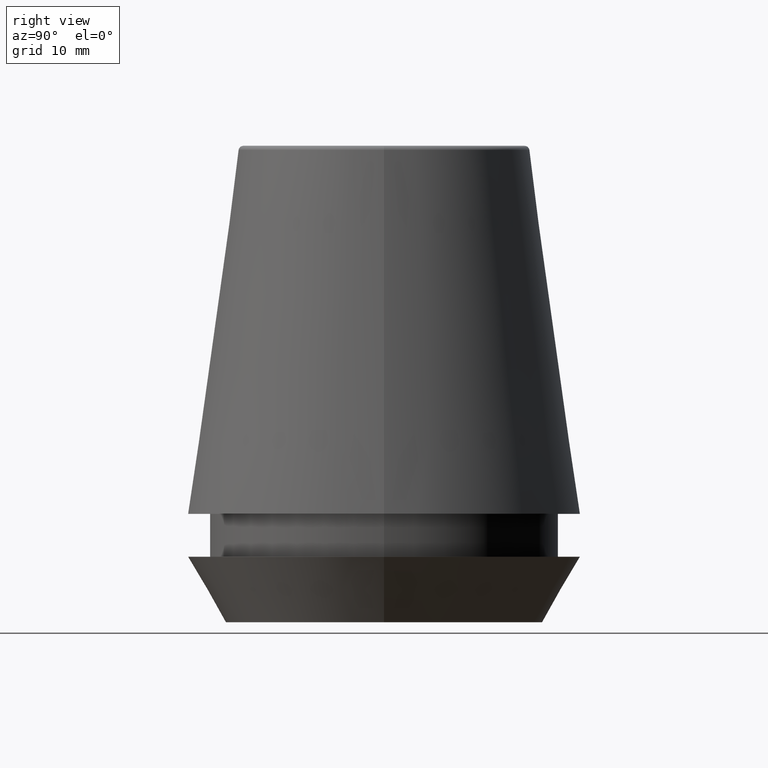
[diagram: clean part render]
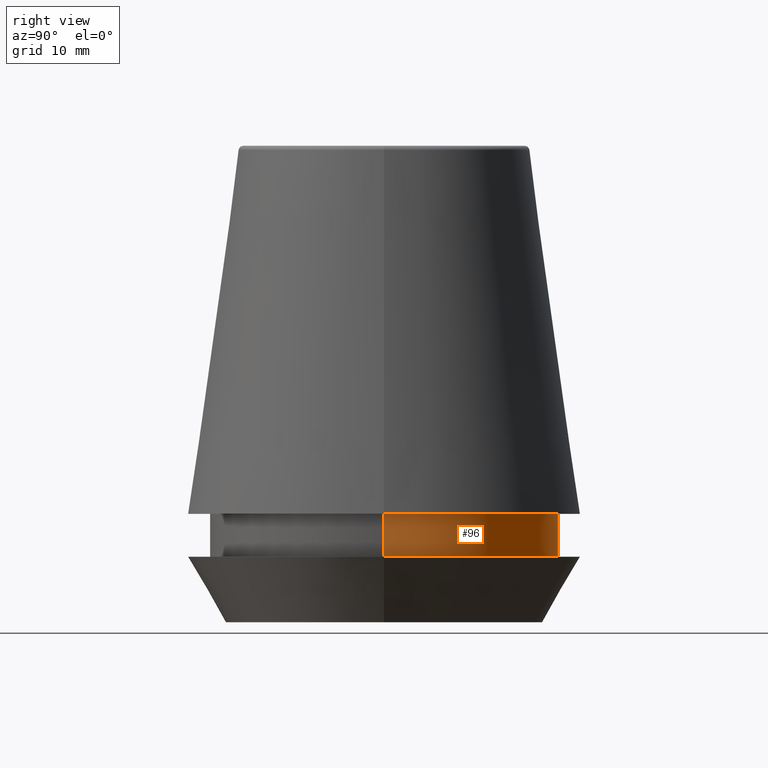
[diagram: same view with one face highlighted and labeled with its STEP entity id]
A machine part, right view. The second image highlights one B-rep face of the part: STEP entity #96.
In plain terms, the highlighted cylindrical surface (partial cylindrical patch) has radius 14.6 mm, axis along (-0, -0, 1).
Its self-contained STEP definition (entity closure, byte-faithful):
#9 = CARTESIAN_POINT ( 'NONE',  ( 0.0000000000000000000, 0.0000000000000000000, 5.500000000000005300 ) ) ;
#25 = DIRECTION ( 'NONE',  ( 1.000000000000000000, 0.0000000000000000000, 0.0000000000000000000 ) ) ;
#32 = DIRECTION ( 'NONE',  ( -0.0000000000000000000, -0.0000000000000000000, 1.000000000000000000 ) ) ;
#40 = DIRECTION ( 'NONE',  ( -0.0000000000000000000, -0.0000000000000000000, 1.000000000000000000 ) ) ;
#46 = CARTESIAN_POINT ( 'NONE',  ( 14.60000000000000000, 0.0000000000000000000, 5.500000000000005300 ) ) ;
#50 = CIRCLE ( 'NONE', #133, 14.60000000000000000 ) ;
#62 = FACE_OUTER_BOUND ( 'NONE', #192, .T. ) ;
#64 = CARTESIAN_POINT ( 'NONE',  ( -14.60000000000000000, 1.787984326755135800E-015, 101.8074564848000400 ) ) ;
#74 = ORIENTED_EDGE ( 'NONE', *, *, #249, .F. ) ;
#96 = ADVANCED_FACE ( 'NONE', ( #62 ), #311, .T. ) ;
#97 = CARTESIAN_POINT ( 'NONE',  ( -14.60000000000000000, 1.787984326755135800E-015, 5.500000000000005300 ) ) ;
#102 = VERTEX_POINT ( 'NONE', #241 ) ;
#105 = ORIENTED_EDGE ( 'NONE', *, *, #221, .F. ) ;
#113 = VECTOR ( 'NONE', #288, 1000.000000000000000 ) ;
#133 = AXIS2_PLACEMENT_3D ( 'NONE', #9, #40, #227 ) ;
#145 = ORIENTED_EDGE ( 'NONE', *, *, #239, .T. ) ;
#149 = CARTESIAN_POINT ( 'NONE',  ( 0.0000000000000000000, 0.0000000000000000000, 101.8074564848000400 ) ) ;
#154 = EDGE_CURVE ( 'NONE', #303, #102, #267, .T. ) ;
#178 = VECTOR ( 'NONE', #32, 1000.000000000000000 ) ;
#185 = CARTESIAN_POINT ( 'NONE',  ( 14.60000000000000000, 0.0000000000000000000, 101.8074564848000400 ) ) ;
#192 = EDGE_LOOP ( 'NONE', ( #145, #307, #105, #74 ) ) ;
#201 = AXIS2_PLACEMENT_3D ( 'NONE', #149, #269, #217 ) ;
#217 = DIRECTION ( 'NONE',  ( 1.000000000000000000, 0.0000000000000000000, 0.0000000000000000000 ) ) ;
#221 = EDGE_CURVE ( 'NONE', #286, #102, #378, .T. ) ;
#227 = DIRECTION ( 'NONE',  ( 1.000000000000000000, 0.0000000000000000000, 0.0000000000000000000 ) ) ;
#239 = EDGE_CURVE ( 'NONE', #375, #303, #50, .T. ) ;
#241 = CARTESIAN_POINT ( 'NONE',  ( -14.60000000000000000, 1.787984326755135800E-015, 9.099999999999997900 ) ) ;
#242 = CARTESIAN_POINT ( 'NONE',  ( 14.60000000000000000, 0.0000000000000000000, 9.099999999999997900 ) ) ;
#249 = EDGE_CURVE ( 'NONE', #375, #286, #354, .T. ) ;
#267 = LINE ( 'NONE', #64, #178 ) ;
#269 = DIRECTION ( 'NONE',  ( -0.0000000000000000000, -0.0000000000000000000, 1.000000000000000000 ) ) ;
#286 = VERTEX_POINT ( 'NONE', #242 ) ;
#288 = DIRECTION ( 'NONE',  ( -0.0000000000000000000, -0.0000000000000000000, 1.000000000000000000 ) ) ;
#291 = DIRECTION ( 'NONE',  ( -0.0000000000000000000, -0.0000000000000000000, 1.000000000000000000 ) ) ;
#303 = VERTEX_POINT ( 'NONE', #97 ) ;
#307 = ORIENTED_EDGE ( 'NONE', *, *, #154, .T. ) ;
#311 = CYLINDRICAL_SURFACE ( 'NONE', #201, 14.60000000000000000 ) ;
#354 = LINE ( 'NONE', #185, #113 ) ;
#375 = VERTEX_POINT ( 'NONE', #46 ) ;
#378 = CIRCLE ( 'NONE', #384, 14.60000000000000000 ) ;
#384 = AXIS2_PLACEMENT_3D ( 'NONE', #385, #291, #25 ) ;
#385 = CARTESIAN_POINT ( 'NONE',  ( 0.0000000000000000000, 0.0000000000000000000, 9.099999999999997900 ) ) ;